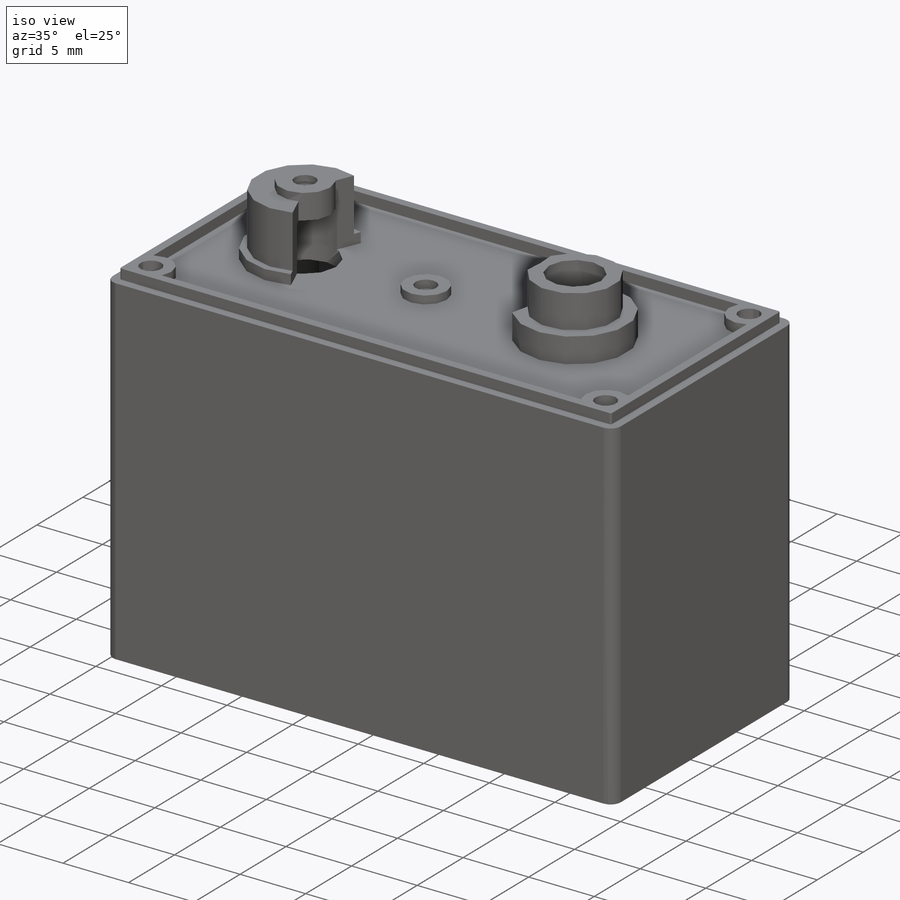
[diagram: iso view]
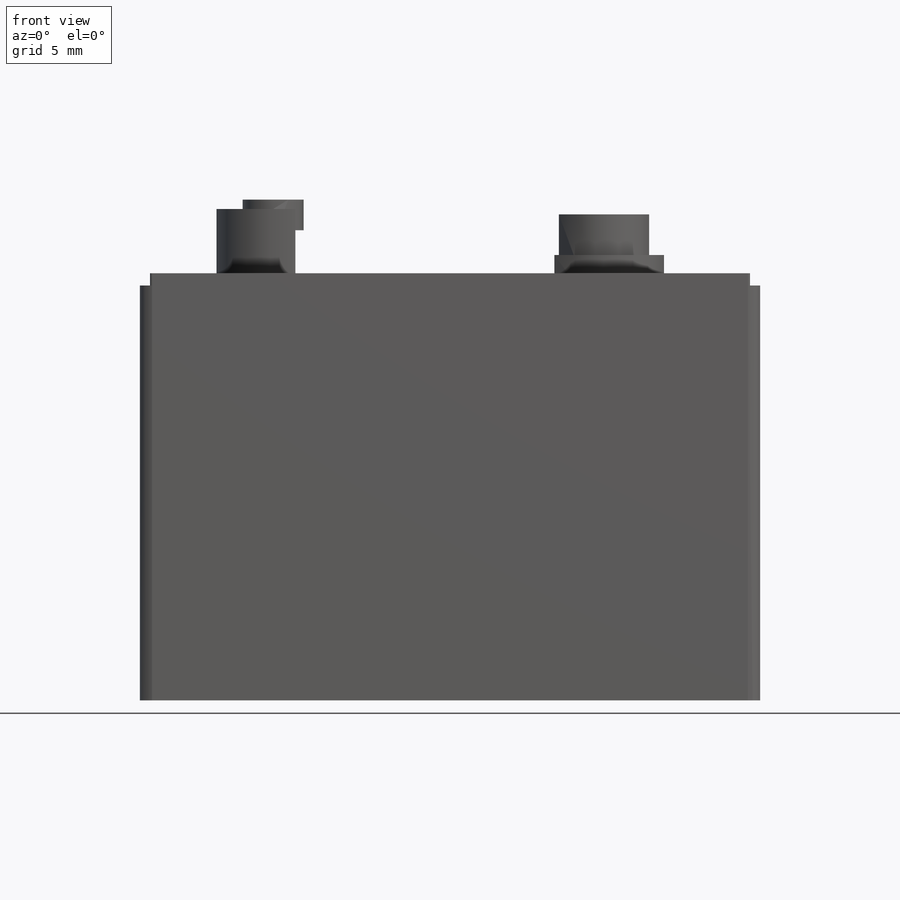
[diagram: front view]
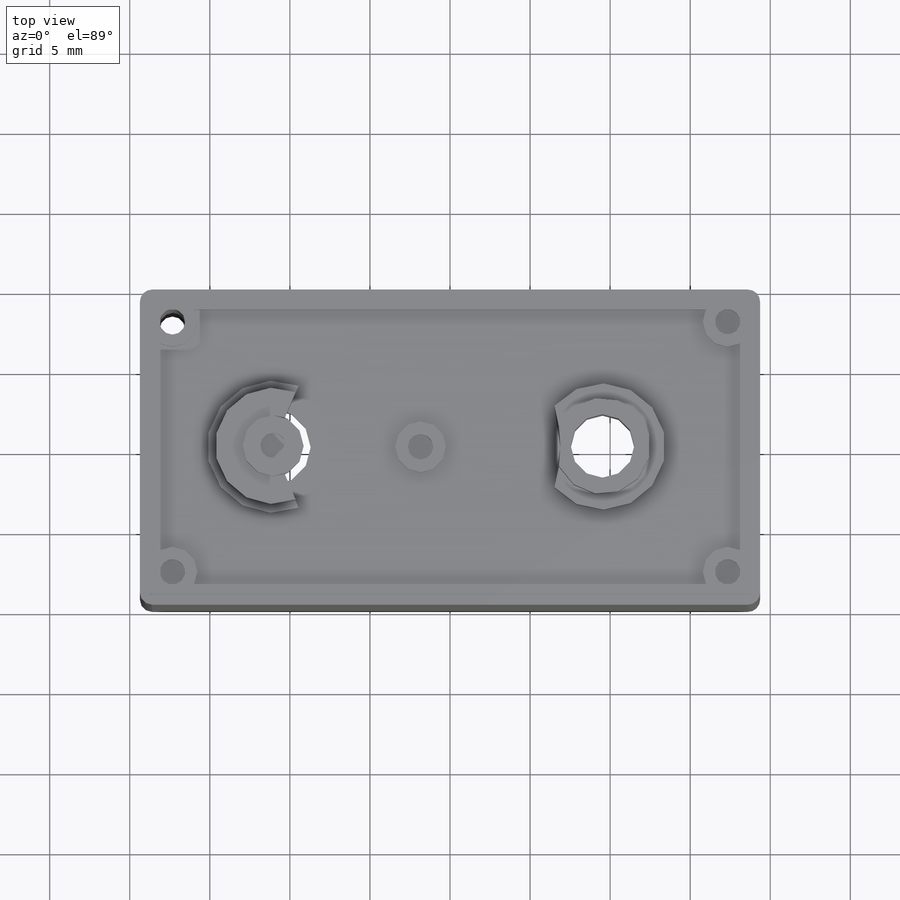
[diagram: top view]
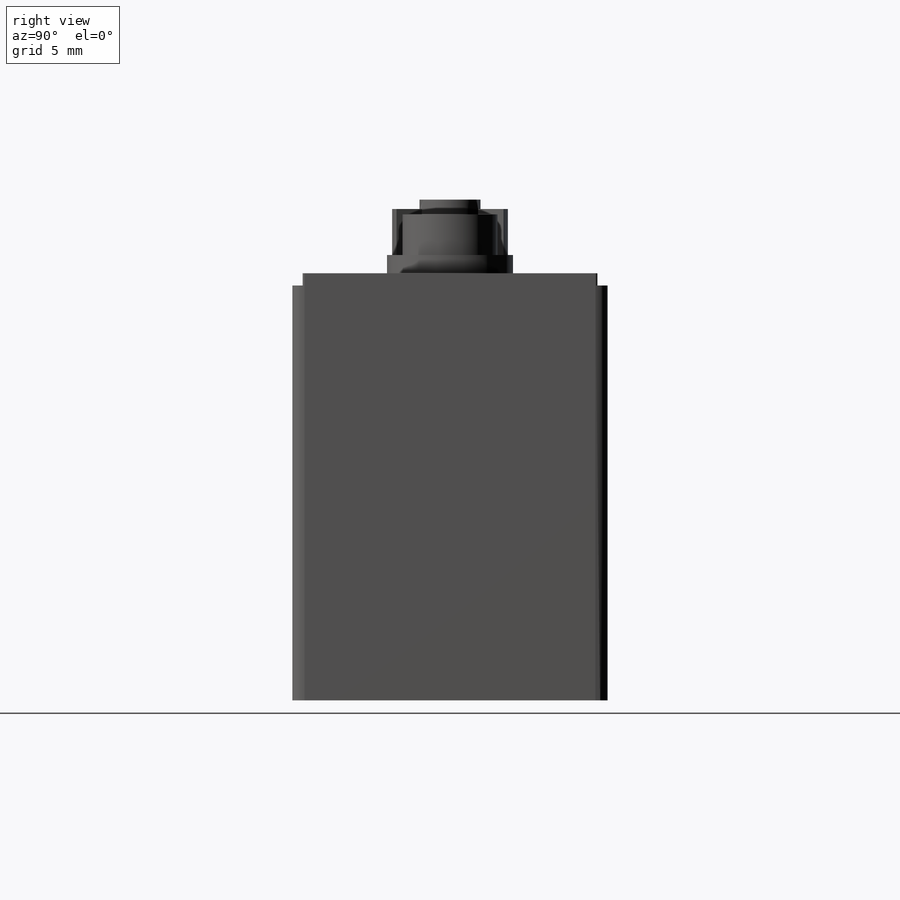
[diagram: right view]
SOLIDWORKS PART (.sldprt)
format: sldprt  version: not decoded by parser v0  size: 588,288 bytes
history: native  units: mm
features: sketch x18, extrude x11, cut_extrude x3, mirror x2, material x1, revolve x1, hole x1 (+13 scaffold rows collapsed)
feature tree (50):
  scaffold x13  (default folders/planes/origin — collapsed)
  material  "ABS"
  sketch  "Sketch1"  dims[c1.D3=4.699mm c1.D4=3.9624mm c1.D7=0.762mm c1.D1=19.685mm c1.D2=38.735mm c1.D5=20.574mm c1.D6=9.8425mm c2.D7=1.524mm c2.D8=1.524mm]
  extrude  "Extrude1"  Depth=1.190625mm
  sketch  "Sketch9"  dims[c1.D1=0.762mm c1.D2=1.5875mm c1.D3=3.81mm c1.D4=0.5842mm c1.D5=1.905mm c1.D6=1.27mm c2.D1=3.81mm c2.D3=3.302mm c2.D6=7.239mm c2.D7=8.255mm c2.D8=0.762mm c2.D9=5.3594mm]
  sketch  "Sketch6"  dims[D1=1.5875mm D2=3.175mm D3=11.3665mm]
  extrude  "Extrude3"  Depth=0.6096mm
  sketch  "Sketch7"  dims[D1=6.0mm]
  extrude  "Extrude4"  Depth=4.445mm
  sketch  "Sketch16"  dims[D1=7.874mm]
  extrude  "Extrude11"  Depth=1.905mm
  sketch  "Sketch17"  dims[D1=5.08mm]
  cut_extrude  "Cut-Extrude1"  [1 undecoded]
  sketch  "Sketch11"  dims[c1.D1=11.43mm c1.D2=~6.954201mm c2.D1=~10.610341mm c2.web width=1.143mm c2.D3=~1.044372mm c3.D1=14.605mm c3.D2=3.81mm c3.D3=1.905mm c3.D4=3.81mm c4.D1=1.27mm]
  extrude  "Extrude6"  Depth=4.572mm
  sketch  "Sketch10"  dims[c1.D1=0.0mm c1.D2=~1.190625mm c2.D1=0.0mm c2.D2=1.27mm]
  extrude  "Extrude5"  Depth=25.90546mm
  sketch  "Sketch13"  dims[c1.D1=~10.753564mm c1.D2=12.7mm c2.D1=0.508mm c2.D5=1.143mm c2.D2=1.905mm c2.D4=3.81mm c3.D5=1.27mm c3.D6=3.81mm c3.D7=1.27mm c3.D1=1.27mm c3.D8=14.605mm c4.D5=3.81mm c4.D6=14.605mm c5.D5=3.81mm c5.D6=14.605mm c6.D5=3.81mm]
  extrude  "Extrude8"  Depth=10.795mm
  sketch  "Sketch14"  dims[c1.D1=~0.396875mm c1.D2=1.5875mm c1.D3=~1.80975mm c2.D2=1.5875mm c2.D3=~0.396875mm c3.D2=1.5875mm c3.D3=1.016mm c3.D1=~1.619553mm c4.D1=45.0deg c4.D3=0.762mm c4.D4=2.032mm]
  extrude  "Extrude9"  Depth=0.762mm
  sketch  "Sketch23"
  cut_extrude  "Cut-Extrude2"  [1 undecoded]
  revolve  "Revolve1"  Angle=360deg
  sketch  "Sketch24"  dims[D1=7.62mm]
  cut_extrude  "Cut-Extrude3"  [1 undecoded]
  mirror  "Mirror1"
  mirror  "Mirror2"
  sketch  "Sketch18"  dims[D1=0.635mm]
  extrude  "Extrude12"  [1 undecoded]
  sketch  "Sketch19"  dims[D1=5.08mm D2=1.27mm D3=0.762mm D4=2.54mm]
  extrude  "Extrude13"  Depth=1.905mm
  sketch  "Sketch20"  dims[D1=3.81mm]
  extrude  "Extrude14"  Depth=1.016mm
  sketch  "Sketch21"
  hole  "#1-64 Tapped Hole1"  Diameter=1.5113mm Depth=5.588mm
  sketch  "3DSketch1"
  sketch  "Sketch22"  dims[hole-wizard template sketch: 28 standard entries collapsed; hole parameters kept: c8.Tap Drill Dia.=1.5113mm c8.Tap Drill Depth=5.588mm c8.Thread Major Dia.=1.8542mm c8.Thread Depth=3.7084mm c8.D5=~14.816244mm c8.Drill Angle=118.0deg]
decode coverage: 27 of 36 modeling features carry decoded parameters
note: ~ marks probable driven/reference dimensions
note: 4 parameter values undecoded
summary: no parameter record found for 4 features
note: suppression state not decoded; provenance and decode notes live in map.json
